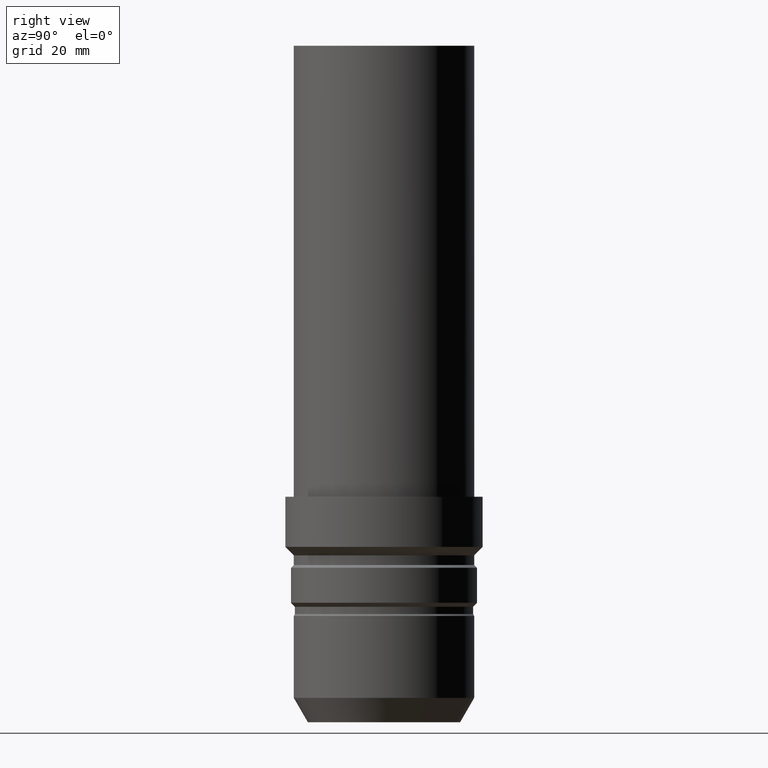
[diagram: clean part render]
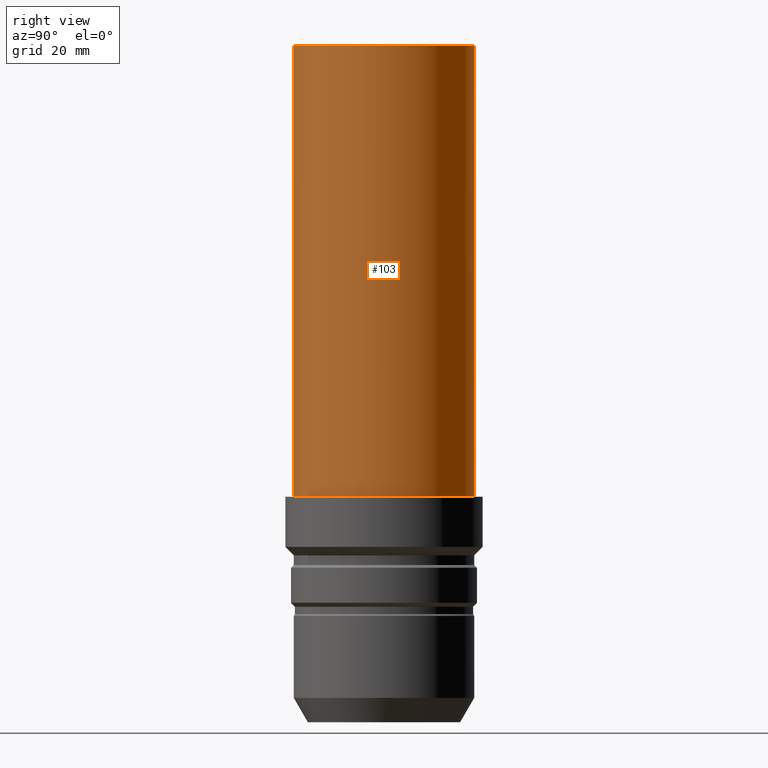
[diagram: same view with one face highlighted and labeled with its STEP entity id]
A machine part, right view. The second image highlights one B-rep face of the part: STEP entity #103.
In plain terms, the highlighted cylindrical surface (bore or boss wall) has radius 16 mm, axis along (0, -0, -1).
Its self-contained STEP definition (entity closure, byte-faithful):
#76=EDGE_CURVE('Unnamed[1]',#176,#176,#177,.T.);
#78=EDGE_CURVE('Unnamed[1]',#179,#179,#180,.T.);
#103=ADVANCED_FACE('Unnamed[1]',(#218,#219),#220,.T.);
#176=VERTEX_POINT('',#301);
#177=CIRCLE('',#302,16.0);
#179=VERTEX_POINT('',#305);
#180=CIRCLE('',#306,16.0000000000002);
#218=FACE_BOUND('',#354,.T.);
#219=FACE_BOUND('',#355,.T.);
#220=CYLINDRICAL_SURFACE('',#356,16.0000000000001);
#301=CARTESIAN_POINT('',(-7.34788079488409E-015,16.0000000000002,120.0));
#302=AXIS2_PLACEMENT_3D('',#432,#433,#434);
#305=CARTESIAN_POINT('',(-2.4492935982947E-015,16.0000000000002,39.9999999999998));
#306=AXIS2_PLACEMENT_3D('',#435,#436,#437);
#354=EDGE_LOOP('',(#478));
#355=EDGE_LOOP('',(#479));
#356=AXIS2_PLACEMENT_3D('',#480,#481,#482);
#432=CARTESIAN_POINT('',(-7.34788079488409E-015,2.22943582672527E-013,120.0));
#433=DIRECTION('',(6.12323399573677E-017,-1.85786318893773E-015,-1.0));
#434=DIRECTION('',(1.08934157648545E-031,1.0,-1.85786318893773E-015));
#435=CARTESIAN_POINT('',(-2.4492935982947E-015,7.4314527557509E-014,39.9999999999999));
#436=DIRECTION('',(6.12323399573677E-017,-1.85786318893773E-015,-1.0));
#437=DIRECTION('',(1.08934157648545E-031,1.0,-1.85786318893773E-015));
#478=ORIENTED_EDGE('',*,*,#78,.F.);
#479=ORIENTED_EDGE('',*,*,#76,.T.);
#480=CARTESIAN_POINT('',(-4.89858719658939E-015,1.48629055115018E-013,79.9999999999997));
#481=DIRECTION('',(6.12323399573677E-017,-1.85786318893773E-015,-1.0));
#482=DIRECTION('',(1.08934157648545E-031,1.0,-1.85786318893773E-015));